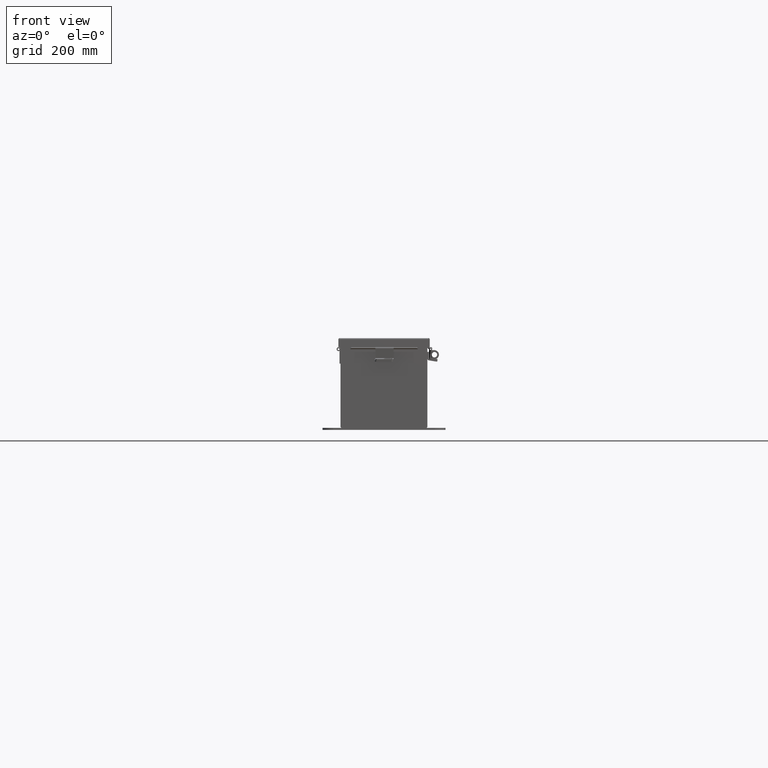
[diagram: clean part render]
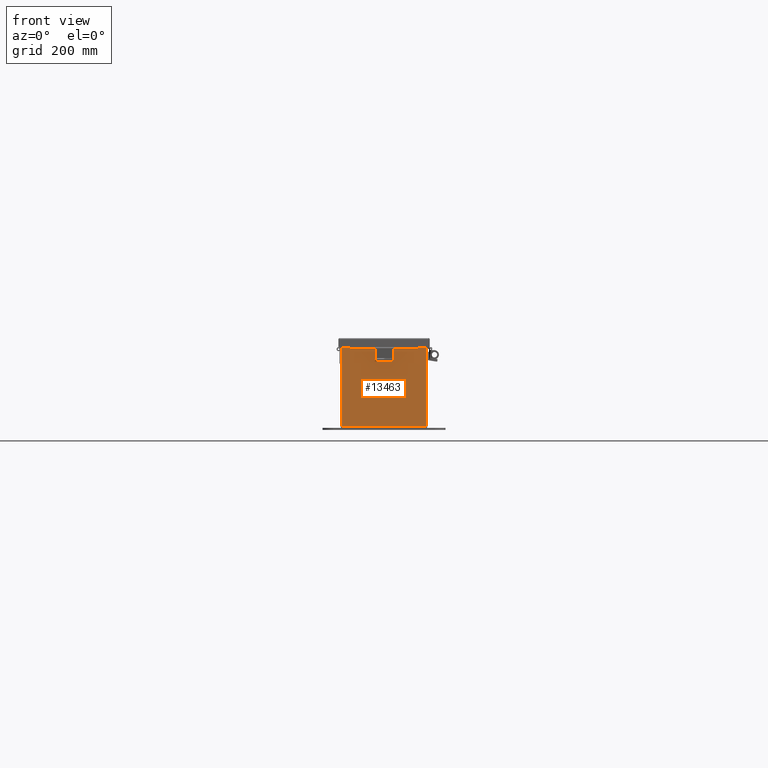
[diagram: same view with one face highlighted and labeled with its STEP entity id]
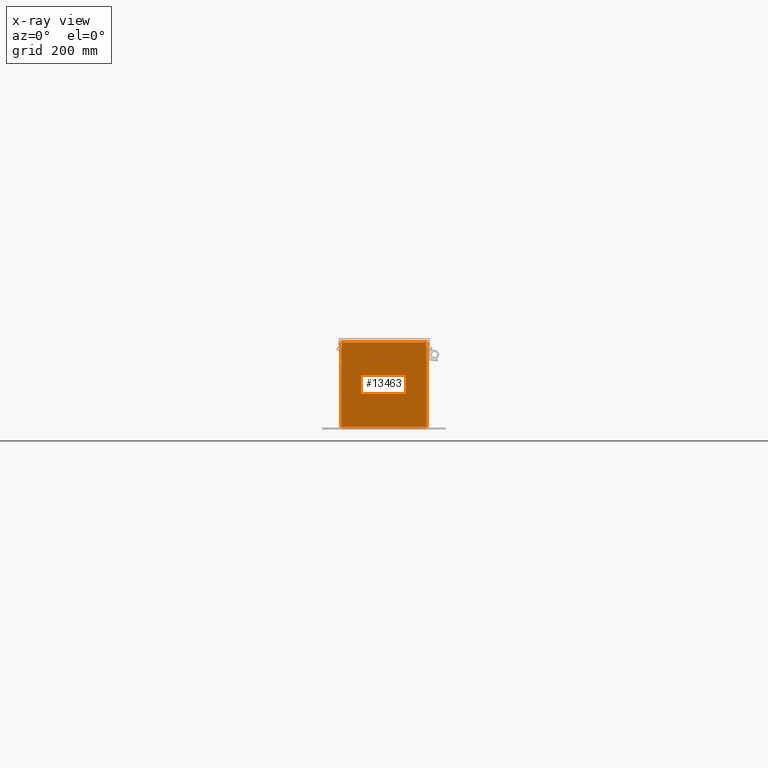
[diagram: x-ray of the same camera — body ghosted, the highlighted face saturated]
A machine part, front view. The second image highlights one B-rep face of the part: STEP entity #13463.
The next image is the same camera in x-ray: the body ghosted, the highlighted face saturated — about 0% of this face is hidden behind the body in this view.
In plain terms, the highlighted planar face has unit normal (-0, 1, -0).
Its self-contained STEP definition (entity closure, byte-faithful):
#335 = ORIENTED_EDGE ( 'NONE', *, *, #32823, .T. ) ;
#363 = ORIENTED_EDGE ( 'NONE', *, *, #7410, .F. ) ;
#734 = ORIENTED_EDGE ( 'NONE', *, *, #27045, .F. ) ;
#922 = DIRECTION ( 'NONE',  ( 5.526334185345597900E-031, 1.000000000000000000, -0.0000000000000000000 ) ) ;
#1135 = ORIENTED_EDGE ( 'NONE', *, *, #26934, .T. ) ;
#1671 = CARTESIAN_POINT ( 'NONE',  ( -2.925299999999998200, 0.0000000000000000000, 2.925300000000000000 ) ) ;
#1790 = EDGE_CURVE ( 'NONE', #10976, #3816, #19747, .T. ) ;
#1791 = CARTESIAN_POINT ( 'NONE',  ( -2.925299999999998200, 0.0000000000000000000, 2.925300000000000000 ) ) ;
#1867 = CARTESIAN_POINT ( 'NONE',  ( 2.925300000000001800, 3.933861110876539400E-014, 2.925299999999999100 ) ) ;
#2458 = CARTESIAN_POINT ( 'NONE',  ( -2.925300000000003600, 0.0000000000000000000, -2.925300000000000500 ) ) ;
#2587 = CARTESIAN_POINT ( 'NONE',  ( 2.925299999999996900, 3.933861110876539400E-014, -2.925300000000000500 ) ) ;
#2616 = VECTOR ( 'NONE', #10799, 39.37007874015748100 ) ;
#3098 = CARTESIAN_POINT ( 'NONE',  ( 0.0000000000000000000, 0.0000000000000000000, 0.0000000000000000000 ) ) ;
#3816 = VERTEX_POINT ( 'NONE', #22671 ) ;
#4308 = ORIENTED_EDGE ( 'NONE', *, *, #32425, .T. ) ;
#4365 = CARTESIAN_POINT ( 'NONE',  ( -2.582299999999998300, 3.933861110876539400E-014, 2.912299999999998800 ) ) ;
#4622 = DIRECTION ( 'NONE',  ( 1.000000000000000000, 5.526334185345597900E-031, 0.0000000000000000000 ) ) ;
#5166 = DIRECTION ( 'NONE',  ( 0.0000000000000000000, 0.0000000000000000000, 1.000000000000000000 ) ) ;
#5646 = VERTEX_POINT ( 'NONE', #1867 ) ;
#5929 = DIRECTION ( 'NONE',  ( -5.526334185345597900E-031, -1.000000000000000000, -0.0000000000000000000 ) ) ;
#5943 = CARTESIAN_POINT ( 'NONE',  ( -2.600974999999998300, 3.933861110876539400E-014, 2.874949999999999700 ) ) ;
#7023 = CARTESIAN_POINT ( 'NONE',  ( -2.582299999999998300, 3.933861110876539400E-014, 2.912299999999998800 ) ) ;
#7179 = DIRECTION ( 'NONE',  ( 1.000000000000000000, 5.526334185345597900E-031, -0.0000000000000000000 ) ) ;
#7323 = EDGE_CURVE ( 'NONE', #18880, #16813, #19652, .T. ) ;
#7410 = EDGE_CURVE ( 'NONE', #3816, #28257, #23570, .T. ) ;
#7608 = ORIENTED_EDGE ( 'NONE', *, *, #34497, .F. ) ;
#7878 = CARTESIAN_POINT ( 'NONE',  ( -2.925299999999998200, 0.0000000000000000000, 2.925300000000000000 ) ) ;
#7926 = VERTEX_POINT ( 'NONE', #2587 ) ;
#8208 = LINE ( 'NONE', #18454, #23230 ) ;
#8771 = DIRECTION ( 'NONE',  ( 0.0000000000000000000, 0.0000000000000000000, -1.000000000000000000 ) ) ;
#8866 = EDGE_CURVE ( 'NONE', #28257, #33409, #22228, .T. ) ;
#8875 = LINE ( 'NONE', #21689, #23024 ) ;
#9446 = ORIENTED_EDGE ( 'NONE', *, *, #14308, .T. ) ;
#10039 = DIRECTION ( 'NONE',  ( 0.0000000000000000000, 0.0000000000000000000, -1.000000000000000000 ) ) ;
#10799 = DIRECTION ( 'NONE',  ( -1.085143195099989400E-014, 0.0000000000000000000, -1.000000000000000000 ) ) ;
#10976 = VERTEX_POINT ( 'NONE', #7023 ) ;
#10977 = DIRECTION ( 'NONE',  ( -1.000000000000000000, -5.526334185345597900E-031, 0.0000000000000000000 ) ) ;
#11181 = VERTEX_POINT ( 'NONE', #27911 ) ;
#11506 = VECTOR ( 'NONE', #7179, 39.37007874015748100 ) ;
#11539 = CARTESIAN_POINT ( 'NONE',  ( -2.925300000000003600, 0.0000000000000000000, -2.925300000000000500 ) ) ;
#11747 = EDGE_LOOP ( 'NONE', ( #33326, #363, #21041, #335, #7608, #30028, #734, #4308, #9446, #16419, #18462, #1135 ) ) ;
#12443 = EDGE_CURVE ( 'NONE', #7926, #18880, #17962, .T. ) ;
#12548 = FACE_OUTER_BOUND ( 'NONE', #11747, .T. ) ;
#13463 = ADVANCED_FACE ( 'NONE', ( #12548 ), #20017, .F. ) ;
#14308 = EDGE_CURVE ( 'NONE', #5646, #7926, #26384, .T. ) ;
#14531 = VECTOR ( 'NONE', #4622, 39.37007874015748100 ) ;
#14690 = VECTOR ( 'NONE', #5166, 39.37007874015748100 ) ;
#15799 = CARTESIAN_POINT ( 'NONE',  ( 2.582300000000001400, 3.933861110876539400E-014, 2.874949999999998800 ) ) ;
#16106 = DIRECTION ( 'NONE',  ( 1.000000000000000000, 5.526334185345597900E-031, 0.0000000000000000000 ) ) ;
#16419 = ORIENTED_EDGE ( 'NONE', *, *, #12443, .T. ) ;
#16696 = DIRECTION ( 'NONE',  ( 0.0000000000000000000, 0.0000000000000000000, -1.000000000000000000 ) ) ;
#16813 = VERTEX_POINT ( 'NONE', #1671 ) ;
#17029 = CARTESIAN_POINT ( 'NONE',  ( -2.619649999999998300, 3.933861110876539400E-014, 2.874949999999998800 ) ) ;
#17815 = CARTESIAN_POINT ( 'NONE',  ( 2.600975000000001800, 3.933861110876539400E-014, 2.874949999999998800 ) ) ;
#17962 = LINE ( 'NONE', #2458, #32081 ) ;
#18454 = CARTESIAN_POINT ( 'NONE',  ( 2.582300000000001400, 0.0000000000000000000, 0.0000000000000000000 ) ) ;
#18459 = CARTESIAN_POINT ( 'NONE',  ( 2.925300000000001800, 3.933861110876539400E-014, 2.925299999999999100 ) ) ;
#18462 = ORIENTED_EDGE ( 'NONE', *, *, #7323, .T. ) ;
#18716 = VERTEX_POINT ( 'NONE', #24778 ) ;
#18880 = VERTEX_POINT ( 'NONE', #11539 ) ;
#19652 = LINE ( 'NONE', #7878, #34613 ) ;
#19747 = LINE ( 'NONE', #22371, #25485 ) ;
#19778 = AXIS2_PLACEMENT_3D ( 'NONE', #5943, #25724, #8771 ) ;
#19928 = LINE ( 'NONE', #4365, #11506 ) ;
#20017 = PLANE ( 'NONE',  #30770 ) ;
#20688 = DIRECTION ( 'NONE',  ( 0.0000000000000000000, 0.0000000000000000000, -1.000000000000000000 ) ) ;
#21041 = ORIENTED_EDGE ( 'NONE', *, *, #1790, .F. ) ;
#21689 = CARTESIAN_POINT ( 'NONE',  ( -2.925299999999998200, 0.0000000000000000000, 2.925300000000000000 ) ) ;
#22228 = LINE ( 'NONE', #33432, #14690 ) ;
#22371 = CARTESIAN_POINT ( 'NONE',  ( -2.582299999999998300, 0.0000000000000000000, 0.0000000000000000000 ) ) ;
#22671 = CARTESIAN_POINT ( 'NONE',  ( -2.582299999999998300, 3.933861110876539400E-014, 2.874949999999999700 ) ) ;
#22683 = VERTEX_POINT ( 'NONE', #24101 ) ;
#23024 = VECTOR ( 'NONE', #16106, 39.37007874015748100 ) ;
#23230 = VECTOR ( 'NONE', #32506, 39.37007874015748100 ) ;
#23570 = CIRCLE ( 'NONE', #19778, 0.01867500000000003900 ) ;
#24055 = CARTESIAN_POINT ( 'NONE',  ( -2.619649999999998300, 3.933861110876539400E-014, 2.925299999999999100 ) ) ;
#24101 = CARTESIAN_POINT ( 'NONE',  ( 2.582300000000001400, 3.933861110876539400E-014, 2.912299999999997900 ) ) ;
#24238 = LINE ( 'NONE', #33392, #2616 ) ;
#24324 = CIRCLE ( 'NONE', #28952, 0.01867500000000003900 ) ;
#24778 = CARTESIAN_POINT ( 'NONE',  ( 2.619650000000001800, 3.933861110876539400E-014, 2.925300000000000000 ) ) ;
#24809 = DIRECTION ( 'NONE',  ( 0.0000000000000000000, 0.0000000000000000000, 1.000000000000000000 ) ) ;
#25485 = VECTOR ( 'NONE', #16696, 39.37007874015748100 ) ;
#25704 = DIRECTION ( 'NONE',  ( 0.0000000000000000000, 0.0000000000000000000, -1.000000000000000000 ) ) ;
#25724 = DIRECTION ( 'NONE',  ( 5.526334185345597900E-031, 1.000000000000000000, -0.0000000000000000000 ) ) ;
#26384 = LINE ( 'NONE', #18459, #33009 ) ;
#26934 = EDGE_CURVE ( 'NONE', #16813, #33409, #32195, .T. ) ;
#27045 = EDGE_CURVE ( 'NONE', #18716, #11181, #24238, .T. ) ;
#27911 = CARTESIAN_POINT ( 'NONE',  ( 2.619650000000001800, 3.933861110876539400E-014, 2.874949999999998800 ) ) ;
#28257 = VERTEX_POINT ( 'NONE', #17029 ) ;
#28952 = AXIS2_PLACEMENT_3D ( 'NONE', #17815, #922, #20688 ) ;
#29874 = VERTEX_POINT ( 'NONE', #15799 ) ;
#30028 = ORIENTED_EDGE ( 'NONE', *, *, #32664, .F. ) ;
#30770 = AXIS2_PLACEMENT_3D ( 'NONE', #3098, #5929, #25704 ) ;
#32081 = VECTOR ( 'NONE', #10977, 39.37007874015748100 ) ;
#32195 = LINE ( 'NONE', #1791, #14531 ) ;
#32425 = EDGE_CURVE ( 'NONE', #18716, #5646, #8875, .T. ) ;
#32506 = DIRECTION ( 'NONE',  ( 0.0000000000000000000, 0.0000000000000000000, 1.000000000000000000 ) ) ;
#32664 = EDGE_CURVE ( 'NONE', #11181, #29874, #24324, .T. ) ;
#32823 = EDGE_CURVE ( 'NONE', #10976, #22683, #19928, .T. ) ;
#33009 = VECTOR ( 'NONE', #10039, 39.37007874015748100 ) ;
#33326 = ORIENTED_EDGE ( 'NONE', *, *, #8866, .F. ) ;
#33392 = CARTESIAN_POINT ( 'NONE',  ( 2.619649999999970700, 0.0000000000000000000, -2.895758873284118700E-014 ) ) ;
#33409 = VERTEX_POINT ( 'NONE', #24055 ) ;
#33432 = CARTESIAN_POINT ( 'NONE',  ( -2.619649999999998300, 0.0000000000000000000, -4.917326388595674200E-015 ) ) ;
#34497 = EDGE_CURVE ( 'NONE', #29874, #22683, #8208, .T. ) ;
#34613 = VECTOR ( 'NONE', #24809, 39.37007874015748100 ) ;